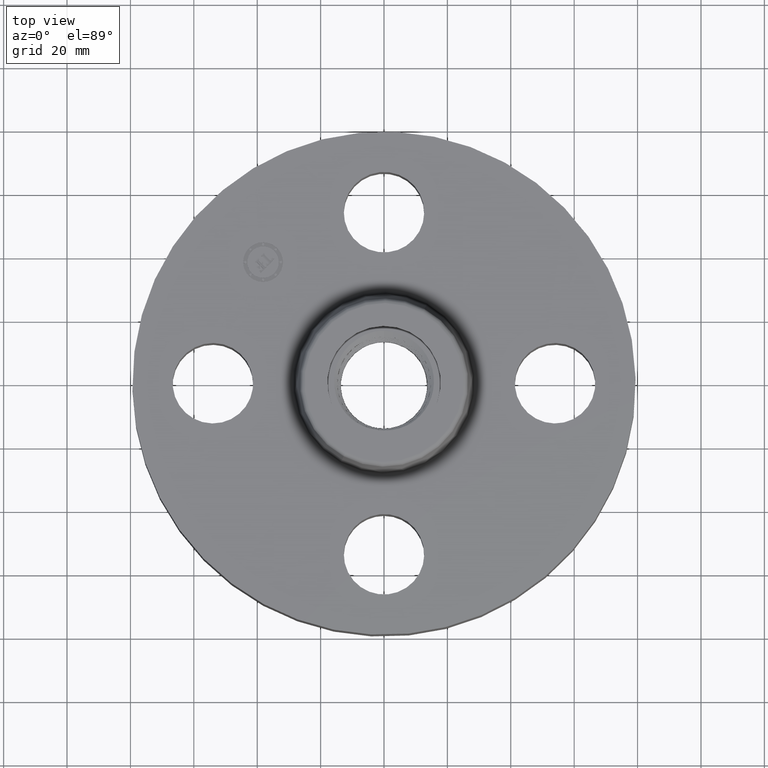
[diagram: clean part render]
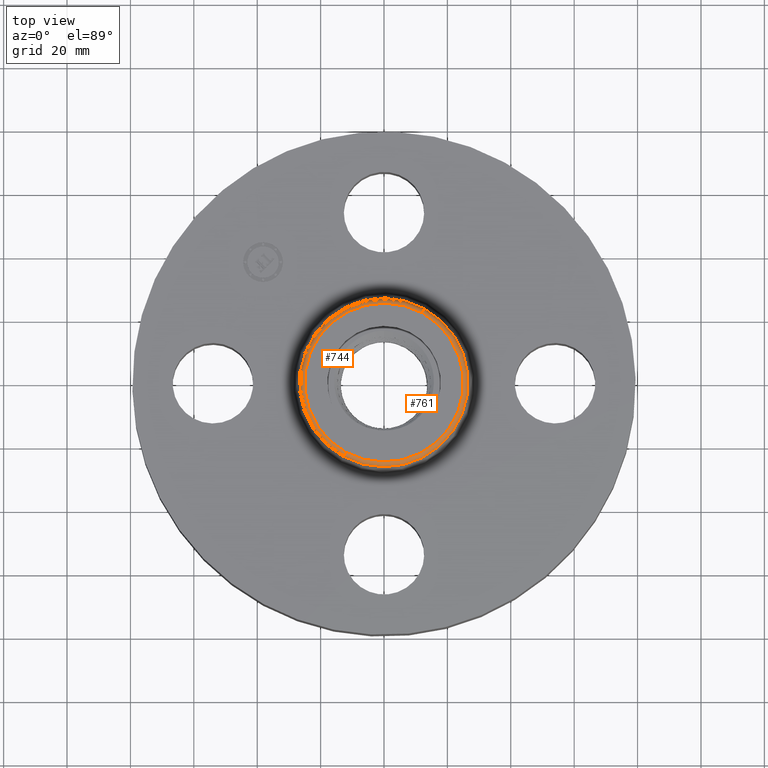
[diagram: same view with one multi-face feature highlighted, each face labeled with its STEP entity id]
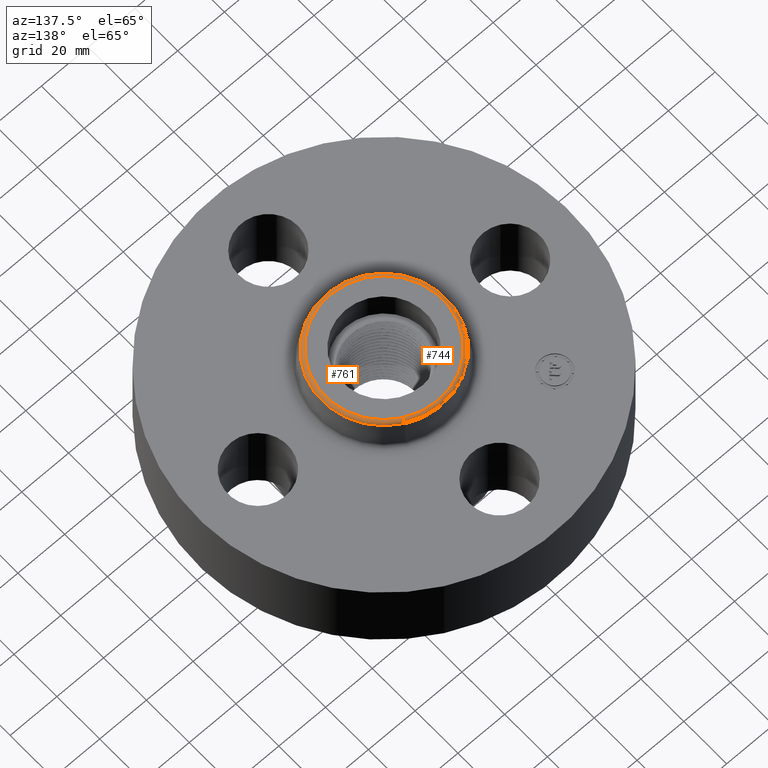
[diagram: same view with one multi-face feature highlighted, each face labeled with its STEP entity id]
A machine part, top view. The highlighted faces form ONE feature: a constant-radius fillet chain: 2 tangent blend faces with common blend radius 1.524 mm. The faces share edges in the B-rep.
A second angle (auxiliary view) of the same feature is appended — it is thin or edge-on in the first view.
Their STEP definitions:
[1] entity #744 (Torus):
#708=AXIS2_PLACEMENT_3D('Torus Axis2P3D',#705,#706,#707) ;
#712=AXIS2_PLACEMENT_3D('Circle Axis2P3D',#710,#711,$) ;
#721=AXIS2_PLACEMENT_3D('Circle Axis2P3D',#719,#720,$) ;
#728=AXIS2_PLACEMENT_3D('Circle Axis2P3D',#726,#727,$) ;
#735=AXIS2_PLACEMENT_3D('Circle Axis2P3D',#733,#734,$) ;
#705=CARTESIAN_POINT('Axis2P3D Location',(0.,0.,1.82000000001)) ;
#710=CARTESIAN_POINT('Axis2P3D Location',(0.,0.,1.83041889067)) ;
#714=CARTESIAN_POINT('Vertex',(-0.501277273771,-0.917581894811,1.83041889067)) ;
#716=CARTESIAN_POINT('Vertex',(0.501277273771,0.917581894811,1.83041889067)) ;
#719=CARTESIAN_POINT('Axis2P3D Location',(-0.472948754526,-0.865726888159,1.82000000001)) ;
#723=CARTESIAN_POINT('Vertex',(-0.472948754526,-0.865726888159,1.88000000001)) ;
#726=CARTESIAN_POINT('Axis2P3D Location',(0.,0.,1.88000000001)) ;
#730=CARTESIAN_POINT('Vertex',(0.472948754526,0.865726888159,1.88000000001)) ;
#733=CARTESIAN_POINT('Axis2P3D Location',(0.472948754526,0.865726888159,1.82000000001)) ;
#706=DIRECTION('Axis2P3D Direction',(0.,0.,-0.0393700787402)) ;
#707=DIRECTION('Axis2P3D XDirection',(0.0188750212049,0.0345504945626,0.)) ;
#711=DIRECTION('Axis2P3D Direction',(0.,0.,-0.0393700787402)) ;
#720=DIRECTION('Axis2P3D Direction',(0.0345504945626,-0.0188750212049,0.)) ;
#727=DIRECTION('Axis2P3D Direction',(0.,0.,-0.0393700787402)) ;
#734=DIRECTION('Axis2P3D Direction',(-0.0345504945626,0.0188750212049,0.)) ;
#739=ORIENTED_EDGE('',*,*,#718,.F.) ;
#740=ORIENTED_EDGE('',*,*,#725,.T.) ;
#741=ORIENTED_EDGE('',*,*,#732,.T.) ;
#742=ORIENTED_EDGE('',*,*,#737,.F.) ;
#744=ADVANCED_FACE('PartBody',(#743),#709,.T.) ;
#713=CIRCLE('generated circle',#712,1.04557899696) ;
#722=CIRCLE('generated circle',#721,0.0600000000002) ;
#729=CIRCLE('generated circle',#728,0.986490531779) ;
#736=CIRCLE('generated circle',#735,0.0600000000002) ;
#709=TOROIDAL_SURFACE('homeo Torus',#708,0.986490531779,0.0600000000002) ;
#718=EDGE_CURVE('',#715,#717,#713,.T.) ;
#725=EDGE_CURVE('',#715,#724,#722,.F.) ;
#732=EDGE_CURVE('',#724,#731,#729,.T.) ;
#737=EDGE_CURVE('',#717,#731,#736,.F.) ;
#738=EDGE_LOOP('',(#739,#740,#741,#742)) ;
#743=FACE_OUTER_BOUND('',#738,.T.) ;
#715=VERTEX_POINT('',#714) ;
#717=VERTEX_POINT('',#716) ;
#724=VERTEX_POINT('',#723) ;
#731=VERTEX_POINT('',#730) ;
[2] entity #761 (Torus):
#708=AXIS2_PLACEMENT_3D('Torus Axis2P3D',#705,#706,#707) ;
#721=AXIS2_PLACEMENT_3D('Circle Axis2P3D',#719,#720,$) ;
#735=AXIS2_PLACEMENT_3D('Circle Axis2P3D',#733,#734,$) ;
#747=AXIS2_PLACEMENT_3D('Circle Axis2P3D',#745,#746,$) ;
#752=AXIS2_PLACEMENT_3D('Circle Axis2P3D',#750,#751,$) ;
#705=CARTESIAN_POINT('Axis2P3D Location',(0.,0.,1.82000000001)) ;
#714=CARTESIAN_POINT('Vertex',(-0.501277273771,-0.917581894811,1.83041889067)) ;
#716=CARTESIAN_POINT('Vertex',(0.501277273771,0.917581894811,1.83041889067)) ;
#719=CARTESIAN_POINT('Axis2P3D Location',(-0.472948754526,-0.865726888159,1.82000000001)) ;
#723=CARTESIAN_POINT('Vertex',(-0.472948754526,-0.865726888159,1.88000000001)) ;
#730=CARTESIAN_POINT('Vertex',(0.472948754526,0.865726888159,1.88000000001)) ;
#733=CARTESIAN_POINT('Axis2P3D Location',(0.472948754526,0.865726888159,1.82000000001)) ;
#745=CARTESIAN_POINT('Axis2P3D Location',(0.,0.,1.83041889067)) ;
#750=CARTESIAN_POINT('Axis2P3D Location',(0.,0.,1.88000000001)) ;
#706=DIRECTION('Axis2P3D Direction',(0.,0.,-0.0393700787402)) ;
#707=DIRECTION('Axis2P3D XDirection',(0.0188750212049,0.0345504945626,0.)) ;
#720=DIRECTION('Axis2P3D Direction',(0.0345504945626,-0.0188750212049,0.)) ;
#734=DIRECTION('Axis2P3D Direction',(-0.0345504945626,0.0188750212049,0.)) ;
#746=DIRECTION('Axis2P3D Direction',(0.,0.,-0.0393700787402)) ;
#751=DIRECTION('Axis2P3D Direction',(0.,0.,-0.0393700787402)) ;
#756=ORIENTED_EDGE('',*,*,#749,.F.) ;
#757=ORIENTED_EDGE('',*,*,#737,.T.) ;
#758=ORIENTED_EDGE('',*,*,#754,.T.) ;
#759=ORIENTED_EDGE('',*,*,#725,.F.) ;
#761=ADVANCED_FACE('PartBody',(#760),#709,.T.) ;
#722=CIRCLE('generated circle',#721,0.0600000000002) ;
#736=CIRCLE('generated circle',#735,0.0600000000002) ;
#748=CIRCLE('generated circle',#747,1.04557899696) ;
#753=CIRCLE('generated circle',#752,0.986490531779) ;
#709=TOROIDAL_SURFACE('homeo Torus',#708,0.986490531779,0.0600000000002) ;
#725=EDGE_CURVE('',#715,#724,#722,.F.) ;
#737=EDGE_CURVE('',#717,#731,#736,.F.) ;
#749=EDGE_CURVE('',#717,#715,#748,.T.) ;
#754=EDGE_CURVE('',#731,#724,#753,.T.) ;
#755=EDGE_LOOP('',(#756,#757,#758,#759)) ;
#760=FACE_OUTER_BOUND('',#755,.T.) ;
#715=VERTEX_POINT('',#714) ;
#717=VERTEX_POINT('',#716) ;
#724=VERTEX_POINT('',#723) ;
#731=VERTEX_POINT('',#730) ;